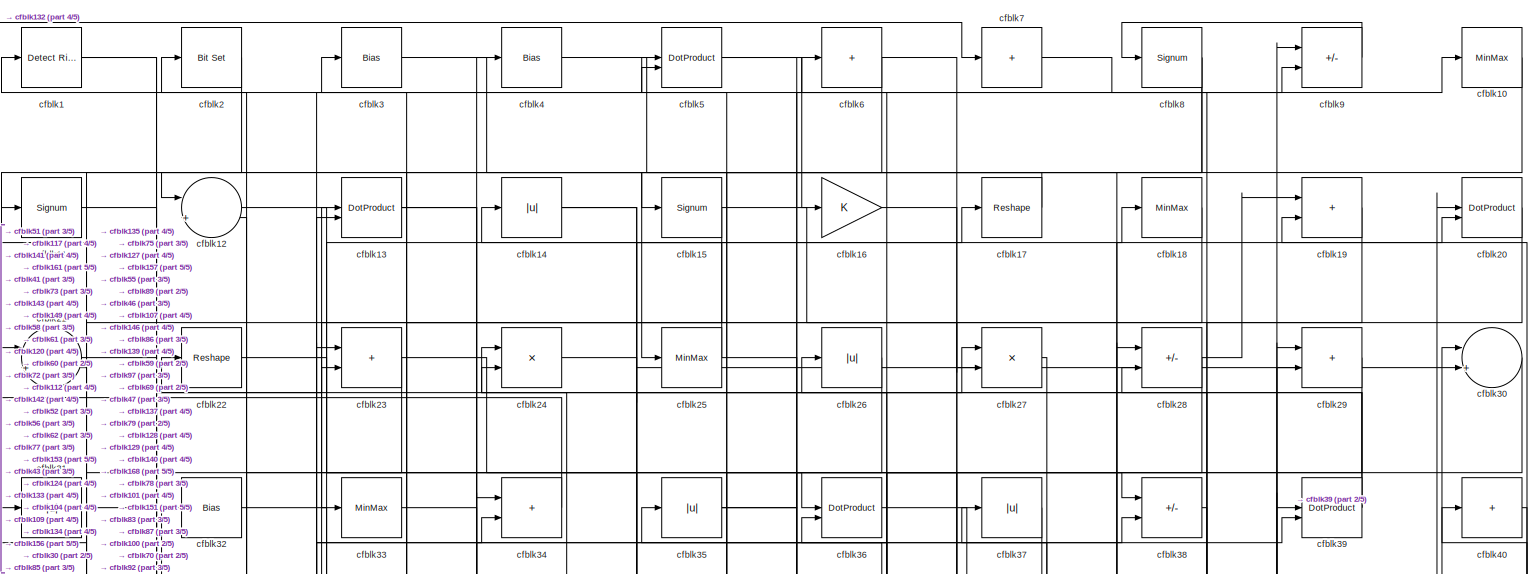
[diagram: root canvas - part 1/5, full width, top band]
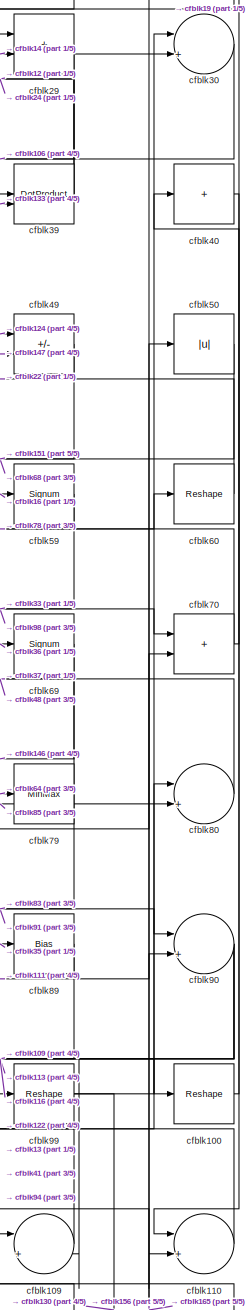
[diagram: root canvas - part 2/5, top right region]
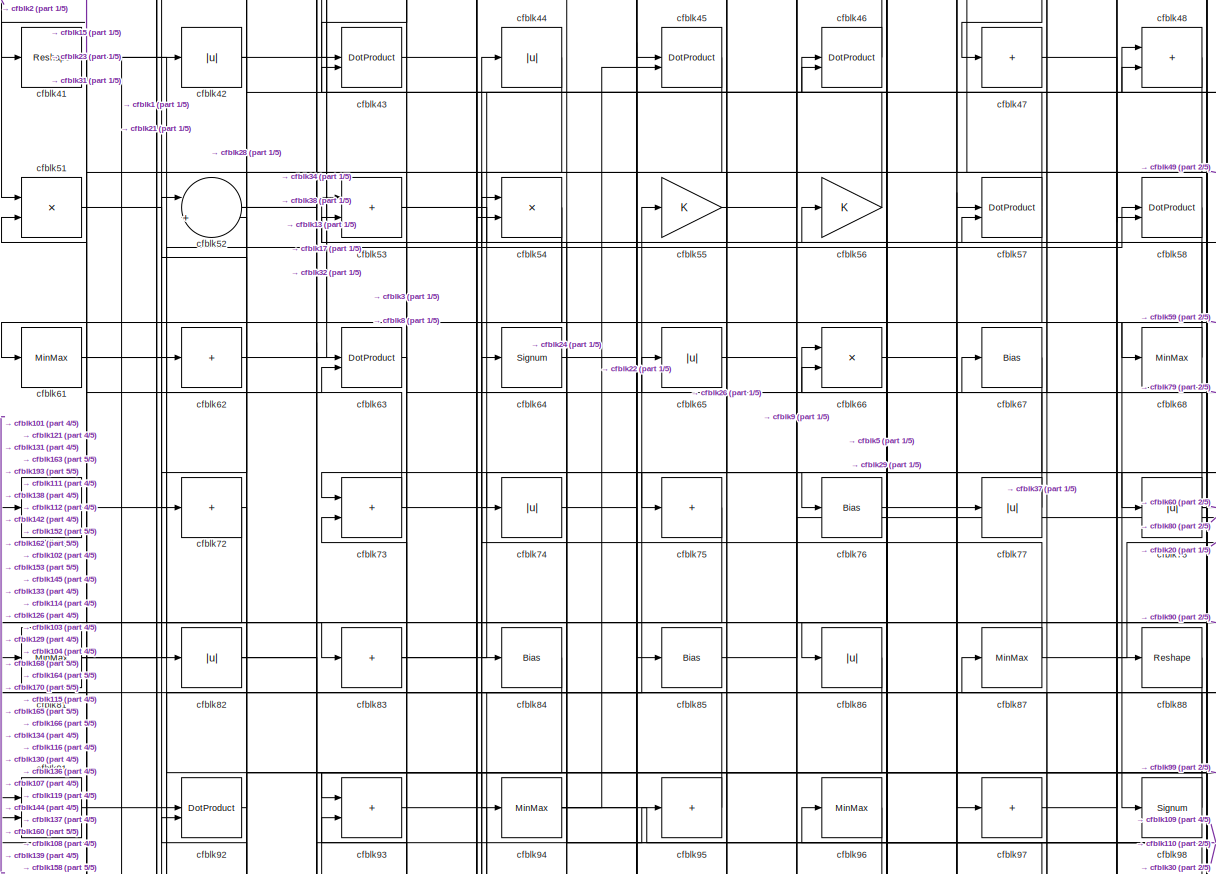
[diagram: root canvas - part 3/5, full width, middle band]
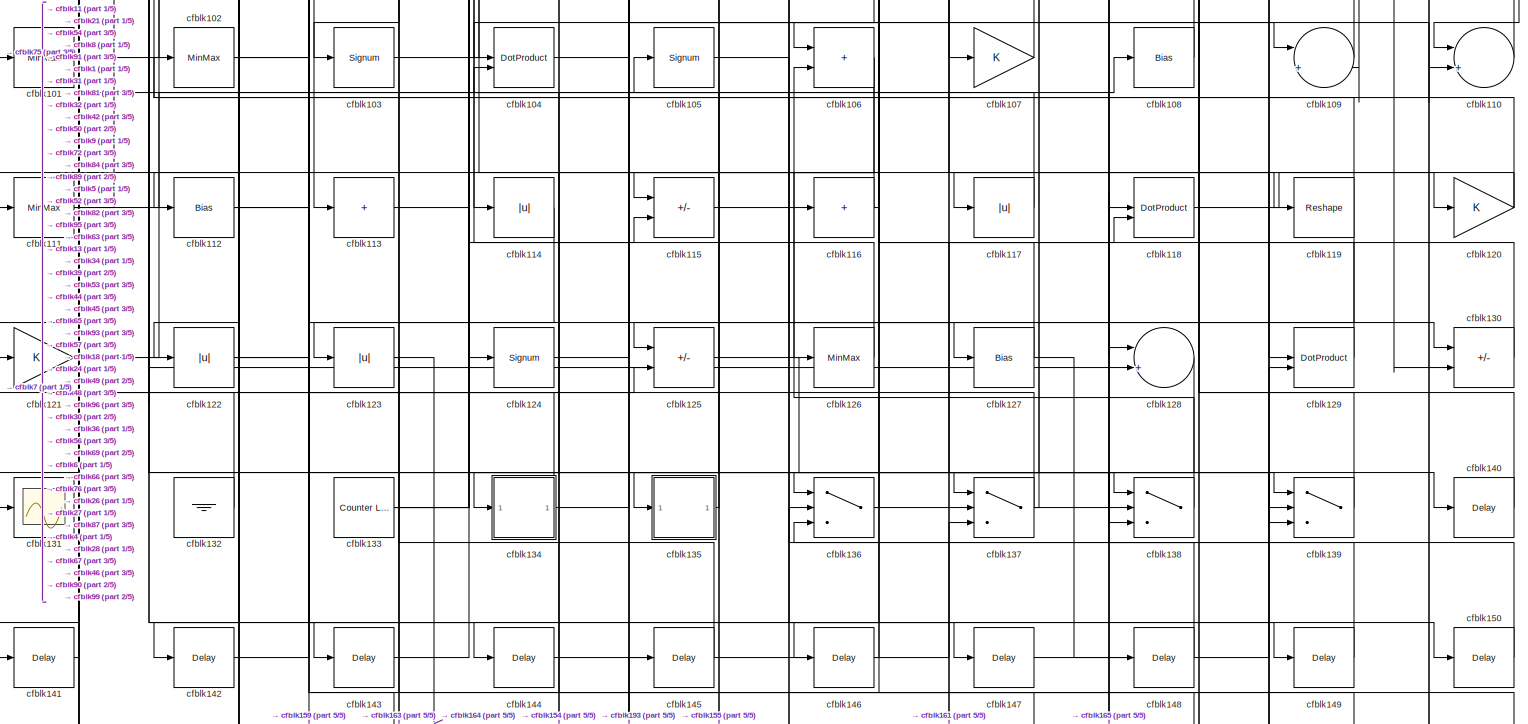
[diagram: root canvas - part 4/5, full width, middle band]
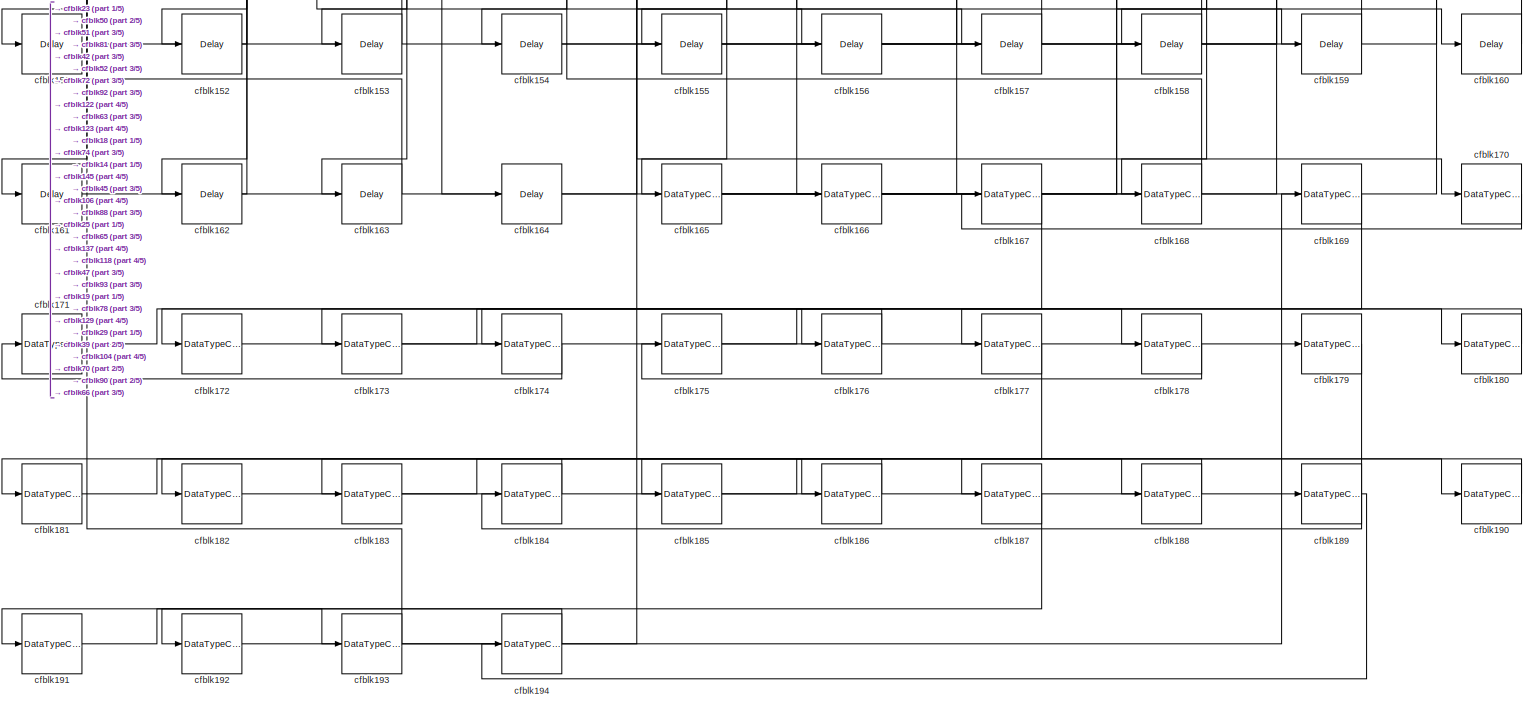
[diagram: root canvas - part 5/5, full width, bottom band]
MODEL slx_5b800271b795
KIND model
CONFIG AbsTol = auto
CONFIG EnableMultiTasking = off
CONFIG FixedStep = auto
CONFIG MaxStep = auto
CONFIG MinStep = auto
CONFIG RelTol = 1e-3
CONFIG SampleTimeConstraint = Unconstrained
CONFIG SolverName = VariableStepAuto
CONFIG StartTime = 0.0
CONFIG StopTime = 10.0
BLOCK [Reference] cfblk1  REF=hdlsllib/Logic and Bit
Operations/Detect Rise
Positive
  SourceBlock = hdlsllib/Logic and Bit\nOperations/Detect Rise\nPositive
  SourceType = Detect Rise Positive
BLOCK [MinMax] cfblk10
BLOCK [Reshape] cfblk100
BLOCK [MinMax] cfblk101
BLOCK [MinMax] cfblk102
BLOCK [Signum] cfblk103
BLOCK [DotProduct] cfblk104
  OutDataTypeStr = Inherit: Inherit via internal rule
BLOCK [Signum] cfblk105
BLOCK [Sum] cfblk106
  IconShape = rectangular
BLOCK [Gain] cfblk107
BLOCK [Bias] cfblk108
  Bias = 0.0
  SaturateOnIntegerOverflow = off
BLOCK [Sum] cfblk109
  Inputs = |++
BLOCK [Signum] cfblk11
BLOCK [Sum] cfblk110
  Inputs = |++
BLOCK [MinMax] cfblk111
BLOCK [Bias] cfblk112
  Bias = 0.0
  SaturateOnIntegerOverflow = off
BLOCK [Sum] cfblk113
  IconShape = rectangular
  Inputs = +
BLOCK [Abs] cfblk114
  SaturateOnIntegerOverflow = off
BLOCK [Sum] cfblk115
  IconShape = rectangular
  Inputs = +-
BLOCK [Sum] cfblk116
  IconShape = rectangular
  Inputs = +
BLOCK [Abs] cfblk117
  SaturateOnIntegerOverflow = off
BLOCK [DotProduct] cfblk118
  OutDataTypeStr = Inherit: Inherit via internal rule
BLOCK [Reshape] cfblk119
BLOCK [Sum] cfblk12
  Inputs = |++
BLOCK [Gain] cfblk120
BLOCK [Gain] cfblk121
BLOCK [Abs] cfblk122
  SaturateOnIntegerOverflow = off
BLOCK [Abs] cfblk123
  SaturateOnIntegerOverflow = off
BLOCK [Signum] cfblk124
BLOCK [Sum] cfblk125
  IconShape = rectangular
  Inputs = +-
BLOCK [MinMax] cfblk126
BLOCK [Bias] cfblk127
  Bias = 0.0
  SaturateOnIntegerOverflow = off
BLOCK [Sum] cfblk128
  Inputs = |++
BLOCK [DotProduct] cfblk129
  OutDataTypeStr = Inherit: Inherit via internal rule
BLOCK [DotProduct] cfblk13
  OutDataTypeStr = Inherit: Inherit via internal rule
BLOCK [Sum] cfblk130
  IconShape = rectangular
  Inputs = +-
BLOCK [Scope] cfblk131
  Floating = off
  NumInputPorts = 1
  ScopeSpecificationString = Simulink.scopes.TimeScopeBlockCfg('CurrentConfiguration', extmgr.ConfigurationSet(extmgr.Configuration('Core','General UI',true),extmgr.Configuration('Core','Source UI',true),extmgr.Configuration('Sources','WiredSimulink',true,'DataLoggingVariableName','ScopeData2','DataLoggingSaveFormat','Array','DataLoggingLimitDataPoints',true,'DataLoggingDecimation','1'),extmgr.Configuration('Visuals','Time Do...<+868ch>
BLOCK [Ground] cfblk132
BLOCK [Reference] cfblk133  REF=hdlsllib/Sources/Counter
Limited
  SourceBlock = hdlsllib/Sources/Counter\nLimited
  SourceType = Counter Limited
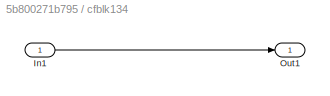
BLOCK [SubSystem] cfblk134
  LibrarySourceBlock = hdlsllib/Ports &\nSubsystems/Subsystem
BLOCK [Inport] cfblk134/In1
BLOCK [Outport] cfblk134/Out1
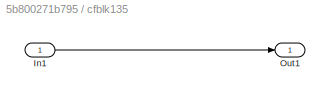
BLOCK [SubSystem] cfblk135
  LibrarySourceBlock = hdlsllib/Ports &\nSubsystems/Subsystem
BLOCK [Inport] cfblk135/In1
BLOCK [Outport] cfblk135/Out1
BLOCK [Switch] cfblk136
  InputSameDT = off
  SaturateOnIntegerOverflow = off
BLOCK [Switch] cfblk137
  InputSameDT = off
  SaturateOnIntegerOverflow = off
BLOCK [Switch] cfblk138
  InputSameDT = off
  SaturateOnIntegerOverflow = off
BLOCK [Switch] cfblk139
  InputSameDT = off
  SaturateOnIntegerOverflow = off
BLOCK [Abs] cfblk14
  SaturateOnIntegerOverflow = off
BLOCK [Delay] cfblk140
  InputPortMap = u0
  SampleTime = 1
BLOCK [Delay] cfblk141
  InputPortMap = u0
  SampleTime = 1
BLOCK [Delay] cfblk142
  InputPortMap = u0
  SampleTime = 1
BLOCK [Delay] cfblk143
  InputPortMap = u0
  SampleTime = 1
BLOCK [Delay] cfblk144
  InputPortMap = u0
  SampleTime = 1
BLOCK [Delay] cfblk145
  InputPortMap = u0
  SampleTime = 1
BLOCK [Delay] cfblk146
  InputPortMap = u0
  SampleTime = 1
BLOCK [Delay] cfblk147
  InputPortMap = u0
  SampleTime = 1
BLOCK [Delay] cfblk148
  InputPortMap = u0
  SampleTime = 1
BLOCK [Delay] cfblk149
  InputPortMap = u0
  SampleTime = 1
BLOCK [Signum] cfblk15
BLOCK [Delay] cfblk150
  InputPortMap = u0
  SampleTime = 1
BLOCK [Delay] cfblk151
  InputPortMap = u0
  SampleTime = 1
BLOCK [Delay] cfblk152
  InputPortMap = u0
  SampleTime = 1
BLOCK [Delay] cfblk153
  InputPortMap = u0
  SampleTime = 1
BLOCK [Delay] cfblk154
  InputPortMap = u0
  SampleTime = 1
BLOCK [Delay] cfblk155
  InputPortMap = u0
  SampleTime = 1
BLOCK [Delay] cfblk156
  InputPortMap = u0
  SampleTime = 1
BLOCK [Delay] cfblk157
  InputPortMap = u0
  SampleTime = 1
BLOCK [Delay] cfblk158
  InputPortMap = u0
  SampleTime = 1
BLOCK [Delay] cfblk159
  InputPortMap = u0
  SampleTime = 1
BLOCK [Gain] cfblk16
BLOCK [Delay] cfblk160
  InputPortMap = u0
  SampleTime = 1
BLOCK [Delay] cfblk161
  InputPortMap = u0
  SampleTime = 1
BLOCK [Delay] cfblk162
  InputPortMap = u0
  SampleTime = 1
BLOCK [Delay] cfblk163
  InputPortMap = u0
  SampleTime = 1
BLOCK [Delay] cfblk164
  InputPortMap = u0
  SampleTime = 1
BLOCK [DataTypeConversion] cfblk165
  RndMeth = Floor
  SaturateOnIntegerOverflow = off
BLOCK [DataTypeConversion] cfblk166
  OutDataTypeStr = uint8
  RndMeth = Floor
  SaturateOnIntegerOverflow = off
BLOCK [DataTypeConversion] cfblk167
  RndMeth = Floor
  SaturateOnIntegerOverflow = off
BLOCK [DataTypeConversion] cfblk168
  OutDataTypeStr = uint8
  RndMeth = Floor
  SaturateOnIntegerOverflow = off
BLOCK [DataTypeConversion] cfblk169
  RndMeth = Floor
  SaturateOnIntegerOverflow = off
BLOCK [Reshape] cfblk17
BLOCK [DataTypeConversion] cfblk170
  OutDataTypeStr = uint8
  RndMeth = Floor
  SaturateOnIntegerOverflow = off
BLOCK [DataTypeConversion] cfblk171
  RndMeth = Floor
  SaturateOnIntegerOverflow = off
BLOCK [DataTypeConversion] cfblk172
  OutDataTypeStr = uint8
  RndMeth = Floor
  SaturateOnIntegerOverflow = off
BLOCK [DataTypeConversion] cfblk173
  RndMeth = Floor
  SaturateOnIntegerOverflow = off
BLOCK [DataTypeConversion] cfblk174
  OutDataTypeStr = uint8
  RndMeth = Floor
  SaturateOnIntegerOverflow = off
BLOCK [DataTypeConversion] cfblk175
  RndMeth = Floor
  SaturateOnIntegerOverflow = off
BLOCK [DataTypeConversion] cfblk176
  OutDataTypeStr = uint8
  RndMeth = Floor
  SaturateOnIntegerOverflow = off
BLOCK [DataTypeConversion] cfblk177
  RndMeth = Floor
  SaturateOnIntegerOverflow = off
BLOCK [DataTypeConversion] cfblk178
  OutDataTypeStr = uint8
  RndMeth = Floor
  SaturateOnIntegerOverflow = off
BLOCK [DataTypeConversion] cfblk179
  RndMeth = Floor
  SaturateOnIntegerOverflow = off
BLOCK [MinMax] cfblk18
BLOCK [DataTypeConversion] cfblk180
  OutDataTypeStr = uint8
  RndMeth = Floor
  SaturateOnIntegerOverflow = off
BLOCK [DataTypeConversion] cfblk181
  RndMeth = Floor
  SaturateOnIntegerOverflow = off
BLOCK [DataTypeConversion] cfblk182
  OutDataTypeStr = uint8
  RndMeth = Floor
  SaturateOnIntegerOverflow = off
BLOCK [DataTypeConversion] cfblk183
  RndMeth = Floor
  SaturateOnIntegerOverflow = off
BLOCK [DataTypeConversion] cfblk184
  OutDataTypeStr = uint8
  RndMeth = Floor
  SaturateOnIntegerOverflow = off
BLOCK [DataTypeConversion] cfblk185
  RndMeth = Floor
  SaturateOnIntegerOverflow = off
BLOCK [DataTypeConversion] cfblk186
  OutDataTypeStr = uint8
  RndMeth = Floor
  SaturateOnIntegerOverflow = off
BLOCK [DataTypeConversion] cfblk187
  RndMeth = Floor
  SaturateOnIntegerOverflow = off
BLOCK [DataTypeConversion] cfblk188
  OutDataTypeStr = uint8
  RndMeth = Floor
  SaturateOnIntegerOverflow = off
BLOCK [DataTypeConversion] cfblk189
  RndMeth = Floor
  SaturateOnIntegerOverflow = off
BLOCK [Sum] cfblk19
  IconShape = rectangular
BLOCK [DataTypeConversion] cfblk190
  OutDataTypeStr = uint8
  RndMeth = Floor
  SaturateOnIntegerOverflow = off
BLOCK [DataTypeConversion] cfblk191
  RndMeth = Floor
  SaturateOnIntegerOverflow = off
BLOCK [DataTypeConversion] cfblk192
  OutDataTypeStr = uint8
  RndMeth = Floor
  SaturateOnIntegerOverflow = off
BLOCK [DataTypeConversion] cfblk193
  RndMeth = Floor
  SaturateOnIntegerOverflow = off
BLOCK [DataTypeConversion] cfblk194
  OutDataTypeStr = uint8
  RndMeth = Floor
  SaturateOnIntegerOverflow = off
BLOCK [Reference] cfblk2  REF=simulink/Logic and Bit
Operations/Bit Set
  LibrarySourceBlock = hdlsllib/Logic and Bit\nOperations/Bit Set
  SourceBlock = simulink/Logic and Bit\nOperations/Bit Set
  SourceType = Bit Set
BLOCK [DotProduct] cfblk20
  OutDataTypeStr = Inherit: Inherit via internal rule
BLOCK [Sum] cfblk21
  Inputs = |++
BLOCK [Reshape] cfblk22
BLOCK [Sum] cfblk23
  IconShape = rectangular
BLOCK [Product] cfblk24
  Inputs = */
  RndMeth = Zero
  SaturateOnIntegerOverflow = on
BLOCK [MinMax] cfblk25
BLOCK [Abs] cfblk26
  SaturateOnIntegerOverflow = off
BLOCK [Product] cfblk27
  Inputs = */
  RndMeth = Zero
  SaturateOnIntegerOverflow = on
BLOCK [Sum] cfblk28
  IconShape = rectangular
  Inputs = +-
BLOCK [Sum] cfblk29
  IconShape = rectangular
BLOCK [Bias] cfblk3
  Bias = 0.0
  SaturateOnIntegerOverflow = off
BLOCK [Sum] cfblk30
  Inputs = |++
BLOCK [Abs] cfblk31
  SaturateOnIntegerOverflow = off
BLOCK [Bias] cfblk32
  Bias = 0.0
  SaturateOnIntegerOverflow = off
BLOCK [MinMax] cfblk33
BLOCK [Sum] cfblk34
  IconShape = rectangular
BLOCK [Abs] cfblk35
  SaturateOnIntegerOverflow = off
BLOCK [DotProduct] cfblk36
  OutDataTypeStr = Inherit: Inherit via internal rule
BLOCK [Abs] cfblk37
  SaturateOnIntegerOverflow = off
BLOCK [Sum] cfblk38
  IconShape = rectangular
  Inputs = +-
BLOCK [DotProduct] cfblk39
  OutDataTypeStr = Inherit: Inherit via internal rule
BLOCK [Bias] cfblk4
  Bias = 0.0
  SaturateOnIntegerOverflow = off
BLOCK [Sum] cfblk40
  IconShape = rectangular
  Inputs = +
BLOCK [Reshape] cfblk41
BLOCK [Abs] cfblk42
  SaturateOnIntegerOverflow = off
BLOCK [DotProduct] cfblk43
  OutDataTypeStr = Inherit: Inherit via internal rule
BLOCK [Abs] cfblk44
  SaturateOnIntegerOverflow = off
BLOCK [DotProduct] cfblk45
  OutDataTypeStr = Inherit: Inherit via internal rule
BLOCK [DotProduct] cfblk46
  OutDataTypeStr = Inherit: Inherit via internal rule
BLOCK [Sum] cfblk47
  IconShape = rectangular
  Inputs = +
BLOCK [Sum] cfblk48
  IconShape = rectangular
BLOCK [Sum] cfblk49
  IconShape = rectangular
  Inputs = +-
BLOCK [DotProduct] cfblk5
  OutDataTypeStr = Inherit: Inherit via internal rule
BLOCK [Abs] cfblk50
  SaturateOnIntegerOverflow = off
BLOCK [Product] cfblk51
  Inputs = */
  RndMeth = Zero
  SaturateOnIntegerOverflow = on
BLOCK [Sum] cfblk52
  Inputs = |++
BLOCK [Sum] cfblk53
  IconShape = rectangular
BLOCK [Product] cfblk54
  Inputs = */
  RndMeth = Zero
  SaturateOnIntegerOverflow = on
BLOCK [Gain] cfblk55
BLOCK [Gain] cfblk56
BLOCK [DotProduct] cfblk57
  OutDataTypeStr = Inherit: Inherit via internal rule
BLOCK [DotProduct] cfblk58
  OutDataTypeStr = Inherit: Inherit via internal rule
BLOCK [Signum] cfblk59
BLOCK [Sum] cfblk6
  IconShape = rectangular
  Inputs = +
BLOCK [Reshape] cfblk60
BLOCK [MinMax] cfblk61
BLOCK [Sum] cfblk62
  IconShape = rectangular
  Inputs = +
BLOCK [DotProduct] cfblk63
  OutDataTypeStr = Inherit: Inherit via internal rule
BLOCK [Signum] cfblk64
BLOCK [Abs] cfblk65
  SaturateOnIntegerOverflow = off
BLOCK [Product] cfblk66
  Inputs = */
  RndMeth = Zero
  SaturateOnIntegerOverflow = on
BLOCK [Bias] cfblk67
  Bias = 0.0
  SaturateOnIntegerOverflow = off
BLOCK [MinMax] cfblk68
BLOCK [Signum] cfblk69
BLOCK [Sum] cfblk7
  IconShape = rectangular
  Inputs = +
BLOCK [Sum] cfblk70
  IconShape = rectangular
BLOCK [Sum] cfblk71
  IconShape = rectangular
  Inputs = +
BLOCK [Sum] cfblk72
  IconShape = rectangular
  Inputs = +
BLOCK [Sum] cfblk73
  IconShape = rectangular
BLOCK [Abs] cfblk74
  SaturateOnIntegerOverflow = off
BLOCK [Sum] cfblk75
  IconShape = rectangular
  Inputs = +
BLOCK [Bias] cfblk76
  Bias = 0.0
  SaturateOnIntegerOverflow = off
BLOCK [Abs] cfblk77
  SaturateOnIntegerOverflow = off
BLOCK [Abs] cfblk78
  SaturateOnIntegerOverflow = off
BLOCK [MinMax] cfblk79
BLOCK [Signum] cfblk8
BLOCK [Sum] cfblk80
  Inputs = |++
BLOCK [MinMax] cfblk81
BLOCK [Abs] cfblk82
  SaturateOnIntegerOverflow = off
BLOCK [Sum] cfblk83
  IconShape = rectangular
  Inputs = +
BLOCK [Bias] cfblk84
  Bias = 0.0
  SaturateOnIntegerOverflow = off
BLOCK [Bias] cfblk85
  Bias = 0.0
  SaturateOnIntegerOverflow = off
BLOCK [Abs] cfblk86
  SaturateOnIntegerOverflow = off
BLOCK [MinMax] cfblk87
BLOCK [Reshape] cfblk88
BLOCK [Bias] cfblk89
  Bias = 0.0
  SaturateOnIntegerOverflow = off
BLOCK [Sum] cfblk9
  IconShape = rectangular
  Inputs = +-
BLOCK [Sum] cfblk90
  Inputs = |++
BLOCK [Product] cfblk91
  Inputs = */
  RndMeth = Zero
  SaturateOnIntegerOverflow = on
BLOCK [DotProduct] cfblk92
  OutDataTypeStr = Inherit: Inherit via internal rule
BLOCK [Sum] cfblk93
  IconShape = rectangular
BLOCK [MinMax] cfblk94
BLOCK [Sum] cfblk95
  IconShape = rectangular
  Inputs = +
BLOCK [MinMax] cfblk96
BLOCK [Sum] cfblk97
  IconShape = rectangular
  Inputs = +
BLOCK [Signum] cfblk98
BLOCK [Reshape] cfblk99
LINE cfblk100:1 -> cfblk19:2
LINE cfblk101:1 -> cfblk9:1
NET cfblk102:1 -> cfblk144:1, cfblk95:1
LINE cfblk103:1 -> cfblk65:1
LINE cfblk104:1 -> cfblk27:1
LINE cfblk105:1 -> cfblk147:1
NET cfblk106:1 -> cfblk154:1, cfblk155:1
LINE cfblk107:1 -> cfblk26:1
LINE cfblk108:1 -> cfblk54:1
LINE cfblk109:1 -> cfblk46:1
LINE cfblk10:1 -> cfblk15:1
LINE cfblk110:1 -> cfblk64:1
NET cfblk111:1 -> cfblk42:1, cfblk50:1
NET cfblk112:1 -> cfblk150:1, cfblk5:1
LINE cfblk113:1 -> cfblk115:2
LINE cfblk114:1 -> cfblk123:1
LINE cfblk115:1 -> cfblk126:1
NET cfblk116:1 -> cfblk111:1, cfblk96:1
LINE cfblk117:1 -> cfblk11:1
LINE cfblk118:1 -> cfblk120:1
NET cfblk119:1 -> cfblk102:1, cfblk125:1
LINE cfblk11:1 -> cfblk149:1
NET cfblk120:1 -> cfblk117:1, cfblk32:1
LINE cfblk121:1 -> cfblk108:1
NET cfblk122:1 -> cfblk125:2, cfblk159:1
NET cfblk123:1 -> cfblk163:1, cfblk164:1
LINE cfblk124:1 -> cfblk49:1
LINE cfblk125:1 -> cfblk139:1
LINE cfblk126:1 -> cfblk44:1
NET cfblk127:1 -> cfblk148:1, cfblk6:1
LINE cfblk128:1 -> cfblk136:1
LINE cfblk129:1 -> cfblk28:2
LINE cfblk12:1 -> cfblk36:1
LINE cfblk130:1 -> cfblk66:1
LINE cfblk132:1 -> cfblk7:1
NET cfblk133:1 -> cfblk39:2, cfblk48:2, cfblk4:1
LINE cfblk134/In1:1 -> cfblk134/Out1:1
NET cfblk134:1 -> cfblk18:1, cfblk91:2
LINE cfblk135/In1:1 -> cfblk135/Out1:1
LINE cfblk135:1 -> cfblk105:1
NET cfblk136:1 -> cfblk118:2, cfblk56:1
NET cfblk137:1 -> cfblk140:1, cfblk52:2, cfblk87:1
LINE cfblk138:1 -> cfblk106:2
LINE cfblk139:1 -> cfblk67:1
NET cfblk13:1 -> cfblk100:1, cfblk124:1
LINE cfblk140:1 -> cfblk1:1
LINE cfblk141:1 -> cfblk21:2
LINE cfblk142:1 -> cfblk13:2
LINE cfblk143:1 -> cfblk34:1
LINE cfblk144:1 -> cfblk57:1
LINE cfblk145:1 -> cfblk53:2
LINE cfblk146:1 -> cfblk36:2
LINE cfblk147:1 -> cfblk49:2
LINE cfblk148:1 -> cfblk136:3
LINE cfblk149:1 -> cfblk28:1
NET cfblk14:1 -> cfblk156:1, cfblk30:2
LINE cfblk150:1 -> cfblk136:2
LINE cfblk151:1 -> cfblk29:2
LINE cfblk152:1 -> cfblk52:1
LINE cfblk153:1 -> cfblk63:1
LINE cfblk154:1 -> cfblk129:2
LINE cfblk155:1 -> cfblk137:2
LINE cfblk156:1 -> cfblk70:2
LINE cfblk157:1 -> cfblk23:1
LINE cfblk158:1 -> cfblk93:2
LINE cfblk159:1 -> cfblk104:2
NET cfblk15:1 -> cfblk27:2, cfblk41:1
LINE cfblk160:1 -> cfblk66:2
LINE cfblk161:1 -> cfblk137:3
LINE cfblk162:1 -> cfblk92:2
LINE cfblk163:1 -> cfblk51:2
LINE cfblk164:1 -> cfblk45:1
NET cfblk165:1 -> cfblk118:1, cfblk39:1, cfblk90:2
LINE cfblk166:1 -> cfblk88:1
LINE cfblk167:1 -> cfblk172:1
LINE cfblk168:1 -> cfblk74:1
LINE cfblk169:1 -> cfblk174:1
LINE cfblk16:1 -> cfblk59:1
LINE cfblk170:1 -> cfblk167:1
LINE cfblk171:1 -> cfblk176:1
LINE cfblk172:1 -> cfblk169:1
LINE cfblk173:1 -> cfblk178:1
LINE cfblk174:1 -> cfblk171:1
LINE cfblk175:1 -> cfblk180:1
LINE cfblk176:1 -> cfblk173:1
LINE cfblk177:1 -> cfblk182:1
LINE cfblk178:1 -> cfblk175:1
LINE cfblk179:1 -> cfblk184:1
LINE cfblk17:1 -> cfblk12:1
LINE cfblk180:1 -> cfblk177:1
LINE cfblk181:1 -> cfblk186:1
LINE cfblk182:1 -> cfblk179:1
LINE cfblk183:1 -> cfblk188:1
LINE cfblk184:1 -> cfblk181:1
LINE cfblk185:1 -> cfblk190:1
LINE cfblk186:1 -> cfblk183:1
LINE cfblk187:1 -> cfblk192:1
LINE cfblk188:1 -> cfblk185:1
LINE cfblk189:1 -> cfblk194:1
LINE cfblk18:1 -> cfblk153:1
LINE cfblk190:1 -> cfblk187:1
LINE cfblk191:1 -> cfblk193:1
LINE cfblk192:1 -> cfblk189:1
NET cfblk193:1 -> cfblk145:1, cfblk81:1
LINE cfblk194:1 -> cfblk191:1
LINE cfblk19:1 -> cfblk168:1
NET cfblk1:1 -> cfblk128:2, cfblk58:2
LINE cfblk20:1 -> cfblk33:1
LINE cfblk21:1 -> cfblk92:1
LINE cfblk22:1 -> cfblk85:1
NET cfblk23:1 -> cfblk161:1, cfblk97:1
LINE cfblk24:1 -> cfblk109:1
NET cfblk25:1 -> cfblk14:1, cfblk157:1
LINE cfblk26:1 -> cfblk75:1
LINE cfblk27:1 -> cfblk137:1
NET cfblk28:1 -> cfblk19:1, cfblk72:1
LINE cfblk29:1 -> cfblk86:1
LINE cfblk2:1 -> cfblk51:1
LINE cfblk30:1 -> cfblk106:1
LINE cfblk31:1 -> cfblk143:1
LINE cfblk32:1 -> cfblk77:1
LINE cfblk33:1 -> cfblk70:1
LINE cfblk34:1 -> cfblk21:1
NET cfblk35:1 -> cfblk38:1, cfblk89:1
LINE cfblk36:1 -> cfblk69:1
LINE cfblk37:1 -> cfblk47:1
LINE cfblk38:1 -> cfblk78:1
NET cfblk39:1 -> cfblk12:2, cfblk24:1
LINE cfblk3:1 -> cfblk25:1
LINE cfblk40:1 -> cfblk110:1
LINE cfblk41:1 -> cfblk99:1
NET cfblk42:1 -> cfblk152:1, cfblk46:2
LINE cfblk43:1 -> cfblk54:2
LINE cfblk44:1 -> cfblk112:1
LINE cfblk45:1 -> cfblk114:1
LINE cfblk46:1 -> cfblk5:2
LINE cfblk47:1 -> cfblk160:1
LINE cfblk48:1 -> cfblk115:1
LINE cfblk49:1 -> cfblk68:1
LINE cfblk4:1 -> cfblk128:1
LINE cfblk50:1 -> cfblk151:1
LINE cfblk51:1 -> cfblk82:1
NET cfblk52:1 -> cfblk138:3, cfblk34:2, cfblk38:2
NET cfblk53:1 -> cfblk139:3, cfblk57:2
NET cfblk54:1 -> cfblk131:1, cfblk84:1
LINE cfblk55:1 -> cfblk9:2
LINE cfblk56:1 -> cfblk13:1
NET cfblk57:1 -> cfblk104:1, cfblk43:2
LINE cfblk58:1 -> cfblk61:1
LINE cfblk59:1 -> cfblk98:1
NET cfblk5:1 -> cfblk127:1, cfblk16:1
LINE cfblk60:1 -> cfblk22:1
NET cfblk61:1 -> cfblk23:2, cfblk63:2
LINE cfblk62:1 -> cfblk17:1
LINE cfblk63:1 -> cfblk103:1
LINE cfblk64:1 -> cfblk79:1
LINE cfblk65:1 -> cfblk166:1
LINE cfblk66:1 -> cfblk119:1
LINE cfblk67:1 -> cfblk73:1
LINE cfblk68:1 -> cfblk53:1
LINE cfblk69:1 -> cfblk146:1
NET cfblk6:1 -> cfblk135:1, cfblk139:2
NET cfblk70:1 -> cfblk35:1, cfblk40:1
LINE cfblk71:1 -> cfblk83:1
NET cfblk72:1 -> cfblk121:1, cfblk162:1
NET cfblk73:1 -> cfblk31:1, cfblk76:1
LINE cfblk74:1 -> cfblk170:1
LINE cfblk75:1 -> cfblk101:1
LINE cfblk76:1 -> cfblk107:1
LINE cfblk77:1 -> cfblk55:1
NET cfblk78:1 -> cfblk158:1, cfblk3:1, cfblk60:1
NET cfblk79:1 -> cfblk37:1, cfblk91:1
LINE cfblk7:1 -> cfblk10:1
LINE cfblk80:1 -> cfblk48:1
NET cfblk81:1 -> cfblk138:1, cfblk138:2, cfblk58:1
NET cfblk82:1 -> cfblk130:1, cfblk94:1
NET cfblk83:1 -> cfblk29:1, cfblk90:1
LINE cfblk84:1 -> cfblk142:1
LINE cfblk85:1 -> cfblk80:2
LINE cfblk86:1 -> cfblk93:1
NET cfblk87:1 -> cfblk20:1, cfblk24:2
LINE cfblk88:1 -> cfblk165:1
LINE cfblk89:1 -> cfblk122:1
NET cfblk8:1 -> cfblk141:1, cfblk43:1
NET cfblk90:1 -> cfblk109:2, cfblk113:1, cfblk116:1
LINE cfblk91:1 -> cfblk62:1
LINE cfblk92:1 -> cfblk2:1
LINE cfblk93:1 -> cfblk129:1
NET cfblk94:1 -> cfblk110:2, cfblk30:1, cfblk45:2
LINE cfblk95:1 -> cfblk71:1
LINE cfblk96:1 -> cfblk134:1
LINE cfblk97:1 -> cfblk20:2
LINE cfblk98:1 -> cfblk73:2
NET cfblk99:1 -> cfblk130:2, cfblk80:1
LINE cfblk9:1 -> cfblk8:1
note: NET lines group one-source signal fan-out (src -> all destinations, sorted); 1:1 wires keep LINE
